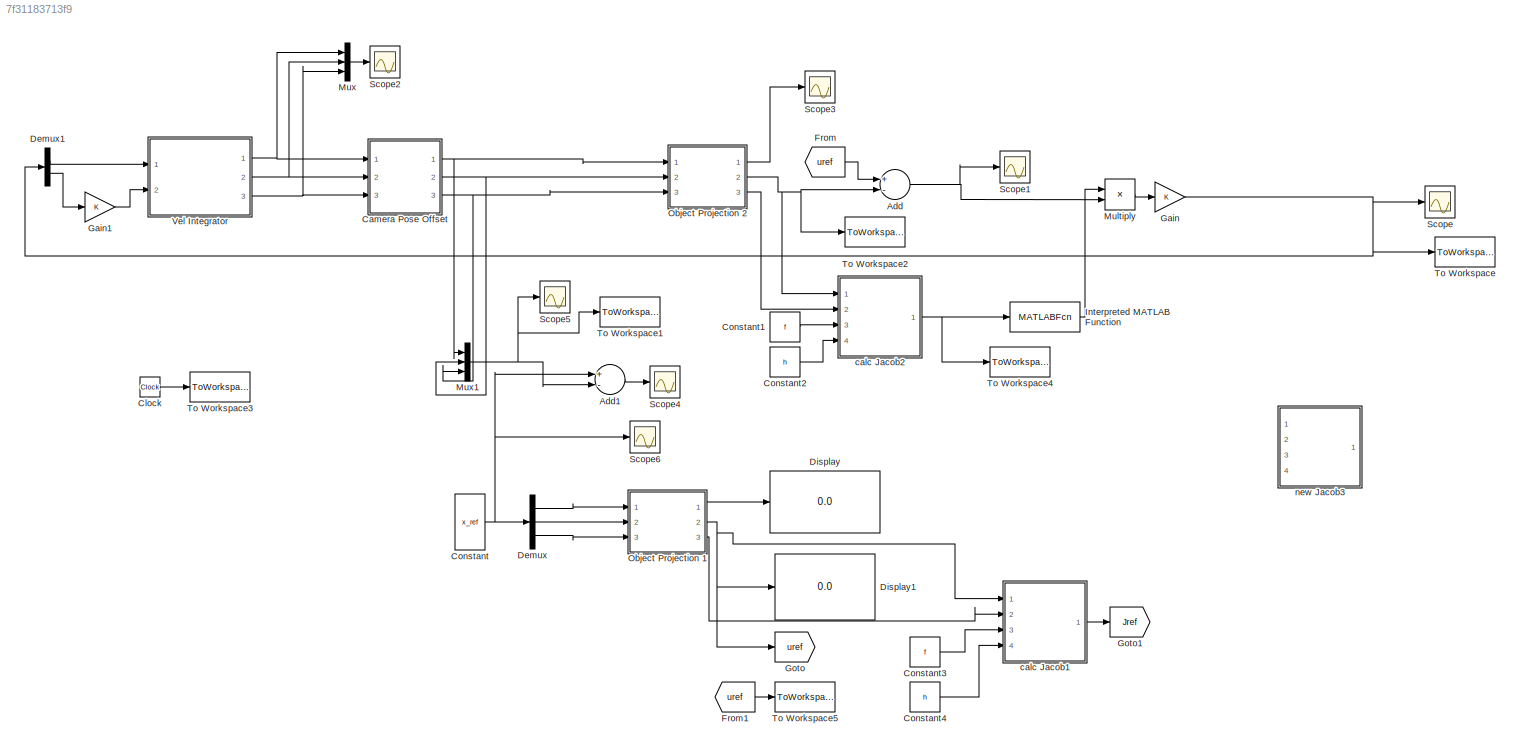
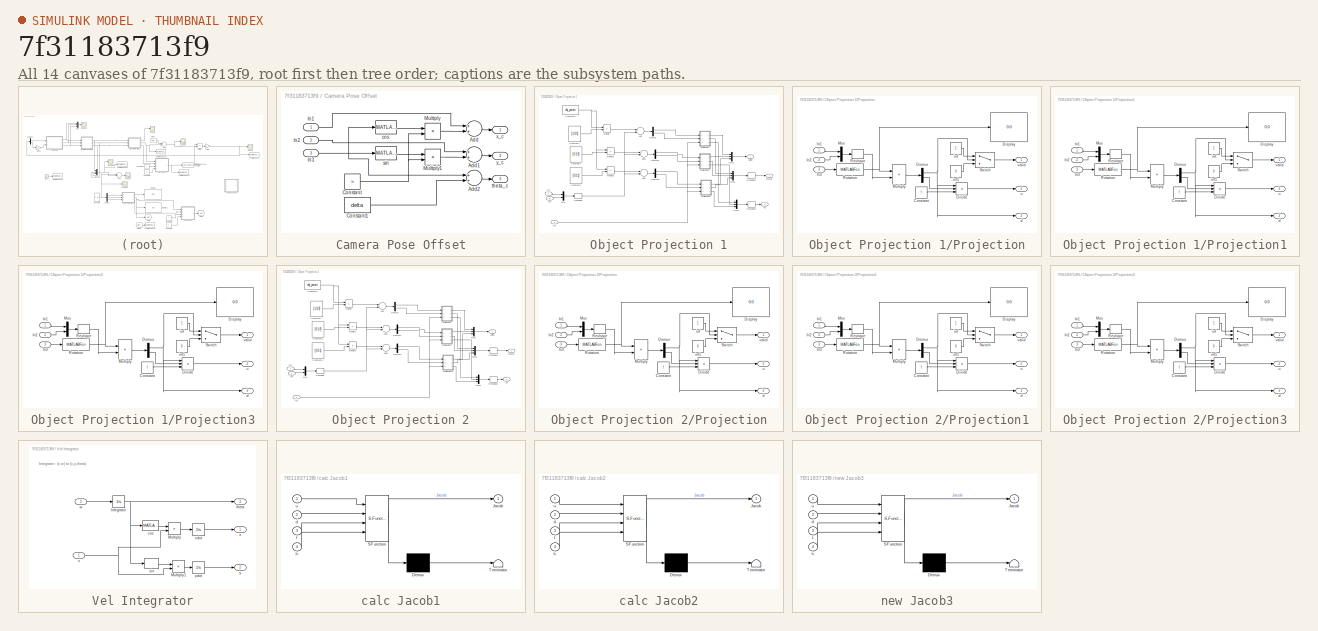
[diagram: thumbnail index - all 14 canvases of the model, root first then tree order]
MODEL slx_7f31183713f9
KIND model
CONFIG AbsTol = auto
CONFIG EnableMultiTasking = off
CONFIG FixedStep = ST
CONFIG MaxStep = auto
CONFIG MinStep = auto
CONFIG RelTol = 1e-3
CONFIG SampleTimeConstraint = Unconstrained
CONFIG Solver = FixedStepAuto
CONFIG SolverName = FixedStepAuto
CONFIG StartTime = 0.0
CONFIG StopTime = 5
BLOCK [Sum] Add
  InputSameDT = off
  Inputs = +-
  OutDataTypeStr = Inherit: Inherit via internal rule
  Ports = [2, 1]
  SaturateOnIntegerOverflow = off
BLOCK [Sum] Add1
  InputSameDT = off
  Inputs = +-
  OutDataTypeStr = Inherit: Inherit via internal rule
  Ports = [2, 1]
  SaturateOnIntegerOverflow = off
BLOCK [SubSystem] Camera Pose Offset
  Ports = [3, 3]
  RequestExecContextInheritance = off
BLOCK [Sum] Camera Pose Offset/Add
  InputSameDT = off
  OutDataTypeStr = Inherit: Inherit via internal rule
  Ports = [2, 1]
  SaturateOnIntegerOverflow = off
BLOCK [Sum] Camera Pose Offset/Add1
  InputSameDT = off
  OutDataTypeStr = Inherit: Inherit via internal rule
  Ports = [2, 1]
  SaturateOnIntegerOverflow = off
BLOCK [Sum] Camera Pose Offset/Add2
  InputSameDT = off
  OutDataTypeStr = Inherit: Inherit via internal rule
  Ports = [2, 1]
  SaturateOnIntegerOverflow = off
BLOCK [Constant] Camera Pose Offset/Constant
  Value = h
BLOCK [Constant] Camera Pose Offset/Constant1
  Value = delta
BLOCK [Inport] Camera Pose Offset/In1
  IconDisplay = Port number
BLOCK [Inport] Camera Pose Offset/In2
  IconDisplay = Port number
  Port = 2
BLOCK [Inport] Camera Pose Offset/In3
  IconDisplay = Port number
  Port = 3
BLOCK [Product] Camera Pose Offset/Multiply
  InputSameDT = off
  OutDataTypeStr = Inherit: Inherit via internal rule
  Ports = [2, 1]
  RndMeth = Floor
  SaturateOnIntegerOverflow = off
BLOCK [Product] Camera Pose Offset/Multiply1
  InputSameDT = off
  OutDataTypeStr = Inherit: Inherit via internal rule
  Ports = [2, 1]
  RndMeth = Floor
  SaturateOnIntegerOverflow = off
BLOCK [MATLABFcn] Camera Pose Offset/cos
  MATLABFcn = cos(u)
  Ports = [1, 1]
BLOCK [MATLABFcn] Camera Pose Offset/sin
  MATLABFcn = sin(u)
  Ports = [1, 1]
BLOCK [Outport] Camera Pose Offset/theta_c
  IconDisplay = Port number
  Port = 3
BLOCK [Outport] Camera Pose Offset/x_c
  IconDisplay = Port number
BLOCK [Outport] Camera Pose Offset/y_c
  IconDisplay = Port number
  Port = 2
BLOCK [Clock] Clock
BLOCK [Constant] Constant
  Value = x_ref
  VectorParams1D = off
BLOCK [Constant] Constant1
  Value = f
BLOCK [Constant] Constant2
  Value = h
BLOCK [Constant] Constant3
  Value = f
BLOCK [Constant] Constant4
  Value = h
BLOCK [Demux] Demux
  DisplayOption = bar
  Outputs = 3
  Ports = [1, 3]
BLOCK [Demux] Demux1
  DisplayOption = bar
  Outputs = 2
  Ports = [1, 2]
BLOCK [Display] Display
  Decimation = 1
  Ports = [1]
BLOCK [Display] Display1
  Decimation = 1
  Ports = [1]
BLOCK [From] From
  GotoTag = uref
BLOCK [From] From1
  GotoTag = uref
BLOCK [Gain] Gain
  OutDataTypeStr = Inherit: Inherit via internal rule
  ParamDataTypeStr = Inherit: Inherit via internal rule
  SaturateOnIntegerOverflow = off
BLOCK [Gain] Gain1
  OutDataTypeStr = Inherit: Inherit via internal rule
  ParamDataTypeStr = Inherit: Inherit via internal rule
  SaturateOnIntegerOverflow = off
BLOCK [Goto] Goto
  GotoTag = uref
BLOCK [Goto] Goto1
  GotoTag = Jref
BLOCK [MATLABFcn] Interpreted MATLAB Function
  MATLABFcn = pinv(u)
  Output1D = off
  Ports = [1, 1]
BLOCK [Product] Multiply
  InputSameDT = off
  Multiplication = Matrix(*)
  OutDataTypeStr = Inherit: Inherit via internal rule
  Ports = [2, 1]
  RndMeth = Floor
  SaturateOnIntegerOverflow = off
BLOCK [Mux] Mux
  DisplayOption = bar
  Inputs = 3
  Ports = [3, 1]
BLOCK [Mux] Mux1
  DisplayOption = bar
  Inputs = 3
  Ports = [3, 1]
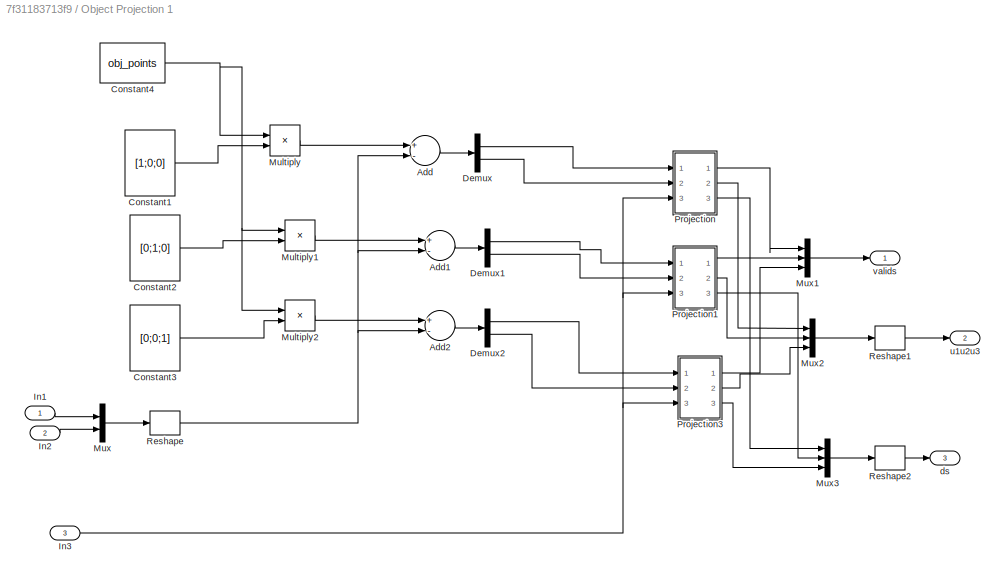
BLOCK [SubSystem] Object Projection 1
  Ports = [3, 3]
  RequestExecContextInheritance = off
BLOCK [Sum] Object Projection 1/Add
  InputSameDT = off
  Inputs = +-
  OutDataTypeStr = Inherit: Inherit via internal rule
  Ports = [2, 1]
  SaturateOnIntegerOverflow = off
BLOCK [Sum] Object Projection 1/Add1
  InputSameDT = off
  Inputs = +-
  OutDataTypeStr = Inherit: Inherit via internal rule
  Ports = [2, 1]
  SaturateOnIntegerOverflow = off
BLOCK [Sum] Object Projection 1/Add2
  InputSameDT = off
  Inputs = +-
  OutDataTypeStr = Inherit: Inherit via internal rule
  Ports = [2, 1]
  SaturateOnIntegerOverflow = off
BLOCK [Constant] Object Projection 1/Constant1
  Value = [1;0;0]
  VectorParams1D = off
BLOCK [Constant] Object Projection 1/Constant2
  Value = [0;1;0]
  VectorParams1D = off
BLOCK [Constant] Object Projection 1/Constant3
  Value = [0;0;1]
  VectorParams1D = off
BLOCK [Constant] Object Projection 1/Constant4
  Value = obj_points
BLOCK [Demux] Object Projection 1/Demux
  DisplayOption = bar
  Outputs = 2
  Ports = [1, 2]
BLOCK [Demux] Object Projection 1/Demux1
  DisplayOption = bar
  Outputs = 2
  Ports = [1, 2]
BLOCK [Demux] Object Projection 1/Demux2
  DisplayOption = bar
  Outputs = 2
  Ports = [1, 2]
BLOCK [Inport] Object Projection 1/In1
  IconDisplay = Port number
BLOCK [Inport] Object Projection 1/In2
  IconDisplay = Port number
  Port = 2
BLOCK [Inport] Object Projection 1/In3
  IconDisplay = Port number
  Port = 3
BLOCK [Product] Object Projection 1/Multiply
  InputSameDT = off
  Multiplication = Matrix(*)
  OutDataTypeStr = Inherit: Inherit via internal rule
  Ports = [2, 1]
  RndMeth = Floor
  SaturateOnIntegerOverflow = off
BLOCK [Product] Object Projection 1/Multiply1
  InputSameDT = off
  Multiplication = Matrix(*)
  OutDataTypeStr = Inherit: Inherit via internal rule
  Ports = [2, 1]
  RndMeth = Floor
  SaturateOnIntegerOverflow = off
BLOCK [Product] Object Projection 1/Multiply2
  InputSameDT = off
  Multiplication = Matrix(*)
  OutDataTypeStr = Inherit: Inherit via internal rule
  Ports = [2, 1]
  RndMeth = Floor
  SaturateOnIntegerOverflow = off
BLOCK [Mux] Object Projection 1/Mux
  DisplayOption = bar
  Inputs = 2
  Ports = [2, 1]
BLOCK [Mux] Object Projection 1/Mux1
  DisplayOption = bar
  Inputs = 3
  Ports = [3, 1]
BLOCK [Mux] Object Projection 1/Mux2
  DisplayOption = bar
  Inputs = 3
  Ports = [3, 1]
BLOCK [Mux] Object Projection 1/Mux3
  DisplayOption = bar
  Inputs = 3
  Ports = [3, 1]
BLOCK [SubSystem] Object Projection 1/Projection
  Ports = [3, 3]
  RequestExecContextInheritance = off
BLOCK [Constant] Object Projection 1/Projection/Constant
  Value = f
BLOCK [Demux] Object Projection 1/Projection/Demux
  DisplayOption = bar
  Outputs = 2
  Ports = [1, 2]
BLOCK [Display] Object Projection 1/Projection/Display
  Decimation = 1
  Ports = [1]
BLOCK [Product] Object Projection 1/Projection/Divide
  InputSameDT = off
  Inputs = /**
  OutDataTypeStr = Inherit: Inherit via internal rule
  Ports = [3, 1]
  RndMeth = Floor
  SaturateOnIntegerOverflow = off
BLOCK [Inport] Object Projection 1/Projection/In1
  IconDisplay = Port number
BLOCK [Inport] Object Projection 1/Projection/In2
  IconDisplay = Port number
  Port = 2
BLOCK [Inport] Object Projection 1/Projection/In3
  IconDisplay = Port number
  Port = 3
BLOCK [Product] Object Projection 1/Projection/Multiply
  InputSameDT = off
  Multiplication = Matrix(*)
  OutDataTypeStr = Inherit: Inherit via internal rule
  Ports = [2, 1]
  RndMeth = Floor
  SaturateOnIntegerOverflow = off
BLOCK [Mux] Object Projection 1/Projection/Mux
  DisplayOption = bar
  Inputs = 2
  Ports = [2, 1]
BLOCK [Reshape] Object Projection 1/Projection/Reshape
  OutputDimensionality = Column vector (2-D)
  Ports = [1, 1]
BLOCK [MATLABFcn] Object Projection 1/Projection/Rotation
  MATLABFcn = [cos(u) sin(u);sin(u) -cos(u)]
  Output1D = off
  OutputDimensions = [2 2]
  Ports = [1, 1]
BLOCK [Switch] Object Projection 1/Projection/Switch
  Criteria = u2 > Threshold
  InputSameDT = off
  SaturateOnIntegerOverflow = off
BLOCK [Outport] Object Projection 1/Projection/d
  IconDisplay = Port number
  Port = 3
BLOCK [Constant] Object Projection 1/Projection/inf
BLOCK [Constant] Object Projection 1/Projection/inf1
  Value = 0
BLOCK [Outport] Object Projection 1/Projection/u
  IconDisplay = Port number
  Port = 2
BLOCK [Outport] Object Projection 1/Projection/valid
  IconDisplay = Port number
BLOCK [SubSystem] Object Projection 1/Projection1
  Ports = [3, 3]
  RequestExecContextInheritance = off
BLOCK [Constant] Object Projection 1/Projection1/Constant
  Value = f
BLOCK [Demux] Object Projection 1/Projection1/Demux
  DisplayOption = bar
  Outputs = 2
  Ports = [1, 2]
BLOCK [Display] Object Projection 1/Projection1/Display
  Decimation = 1
  Ports = [1]
BLOCK [Product] Object Projection 1/Projection1/Divide
  InputSameDT = off
  Inputs = /**
  OutDataTypeStr = Inherit: Inherit via internal rule
  Ports = [3, 1]
  RndMeth = Floor
  SaturateOnIntegerOverflow = off
BLOCK [Inport] Object Projection 1/Projection1/In1
  IconDisplay = Port number
BLOCK [Inport] Object Projection 1/Projection1/In2
  IconDisplay = Port number
  Port = 2
BLOCK [Inport] Object Projection 1/Projection1/In3
  IconDisplay = Port number
  Port = 3
BLOCK [Product] Object Projection 1/Projection1/Multiply
  InputSameDT = off
  Multiplication = Matrix(*)
  OutDataTypeStr = Inherit: Inherit via internal rule
  Ports = [2, 1]
  RndMeth = Floor
  SaturateOnIntegerOverflow = off
BLOCK [Mux] Object Projection 1/Projection1/Mux
  DisplayOption = bar
  Inputs = 2
  Ports = [2, 1]
BLOCK [Reshape] Object Projection 1/Projection1/Reshape
  OutputDimensionality = Column vector (2-D)
  Ports = [1, 1]
BLOCK [MATLABFcn] Object Projection 1/Projection1/Rotation
  MATLABFcn = [cos(u) sin(u);sin(u) -cos(u)]
  Output1D = off
  OutputDimensions = [2 2]
  Ports = [1, 1]
BLOCK [Switch] Object Projection 1/Projection1/Switch
  Criteria = u2 > Threshold
  InputSameDT = off
  SaturateOnIntegerOverflow = off
BLOCK [Outport] Object Projection 1/Projection1/d
  IconDisplay = Port number
  Port = 3
BLOCK [Constant] Object Projection 1/Projection1/inf
BLOCK [Constant] Object Projection 1/Projection1/inf1
  Value = 0
BLOCK [Outport] Object Projection 1/Projection1/u
  IconDisplay = Port number
  Port = 2
BLOCK [Outport] Object Projection 1/Projection1/valid
  IconDisplay = Port number
BLOCK [SubSystem] Object Projection 1/Projection3
  Ports = [3, 3]
  RequestExecContextInheritance = off
BLOCK [Constant] Object Projection 1/Projection3/Constant
  Value = f
BLOCK [Demux] Object Projection 1/Projection3/Demux
  DisplayOption = bar
  Outputs = 2
  Ports = [1, 2]
BLOCK [Display] Object Projection 1/Projection3/Display
  Decimation = 1
  Ports = [1]
BLOCK [Product] Object Projection 1/Projection3/Divide
  InputSameDT = off
  Inputs = /**
  OutDataTypeStr = Inherit: Inherit via internal rule
  Ports = [3, 1]
  RndMeth = Floor
  SaturateOnIntegerOverflow = off
BLOCK [Inport] Object Projection 1/Projection3/In1
  IconDisplay = Port number
BLOCK [Inport] Object Projection 1/Projection3/In2
  IconDisplay = Port number
  Port = 2
BLOCK [Inport] Object Projection 1/Projection3/In3
  IconDisplay = Port number
  Port = 3
BLOCK [Product] Object Projection 1/Projection3/Multiply
  InputSameDT = off
  Multiplication = Matrix(*)
  OutDataTypeStr = Inherit: Inherit via internal rule
  Ports = [2, 1]
  RndMeth = Floor
  SaturateOnIntegerOverflow = off
BLOCK [Mux] Object Projection 1/Projection3/Mux
  DisplayOption = bar
  Inputs = 2
  Ports = [2, 1]
BLOCK [Reshape] Object Projection 1/Projection3/Reshape
  OutputDimensionality = Column vector (2-D)
  Ports = [1, 1]
BLOCK [MATLABFcn] Object Projection 1/Projection3/Rotation
  MATLABFcn = [cos(u) sin(u);sin(u) -cos(u)]
  Output1D = off
  OutputDimensions = [2 2]
  Ports = [1, 1]
BLOCK [Switch] Object Projection 1/Projection3/Switch
  Criteria = u2 > Threshold
  InputSameDT = off
  SaturateOnIntegerOverflow = off
BLOCK [Outport] Object Projection 1/Projection3/d
  IconDisplay = Port number
  Port = 3
BLOCK [Constant] Object Projection 1/Projection3/inf
BLOCK [Constant] Object Projection 1/Projection3/inf1
  Value = 0
BLOCK [Outport] Object Projection 1/Projection3/u
  IconDisplay = Port number
  Port = 2
BLOCK [Outport] Object Projection 1/Projection3/valid
  IconDisplay = Port number
BLOCK [Reshape] Object Projection 1/Reshape
  OutputDimensionality = Column vector (2-D)
  Ports = [1, 1]
BLOCK [Reshape] Object Projection 1/Reshape1
  OutputDimensionality = Column vector (2-D)
  Ports = [1, 1]
BLOCK [Reshape] Object Projection 1/Reshape2
  OutputDimensionality = Column vector (2-D)
  Ports = [1, 1]
BLOCK [Outport] Object Projection 1/ds
  IconDisplay = Port number
  Port = 3
BLOCK [Outport] Object Projection 1/u1u2u3
  IconDisplay = Port number
  Port = 2
BLOCK [Outport] Object Projection 1/valids
  IconDisplay = Port number
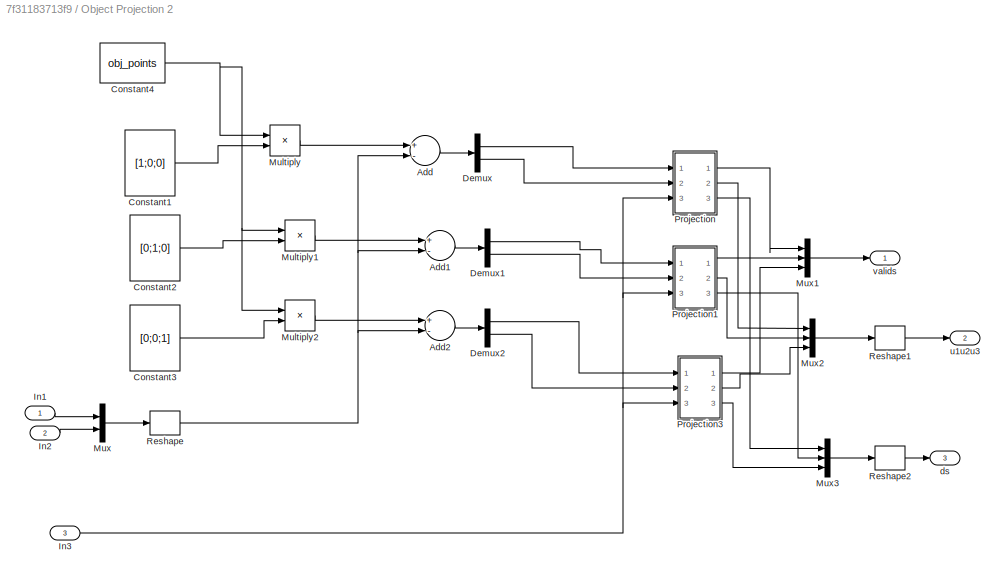
BLOCK [SubSystem] Object Projection 2
  Ports = [3, 3]
  RequestExecContextInheritance = off
BLOCK [Sum] Object Projection 2/Add
  InputSameDT = off
  Inputs = +-
  OutDataTypeStr = Inherit: Inherit via internal rule
  Ports = [2, 1]
  SaturateOnIntegerOverflow = off
BLOCK [Sum] Object Projection 2/Add1
  InputSameDT = off
  Inputs = +-
  OutDataTypeStr = Inherit: Inherit via internal rule
  Ports = [2, 1]
  SaturateOnIntegerOverflow = off
BLOCK [Sum] Object Projection 2/Add2
  InputSameDT = off
  Inputs = +-
  OutDataTypeStr = Inherit: Inherit via internal rule
  Ports = [2, 1]
  SaturateOnIntegerOverflow = off
BLOCK [Constant] Object Projection 2/Constant1
  Value = [1;0;0]
  VectorParams1D = off
BLOCK [Constant] Object Projection 2/Constant2
  Value = [0;1;0]
  VectorParams1D = off
BLOCK [Constant] Object Projection 2/Constant3
  Value = [0;0;1]
  VectorParams1D = off
BLOCK [Constant] Object Projection 2/Constant4
  Value = obj_points
BLOCK [Demux] Object Projection 2/Demux
  DisplayOption = bar
  Outputs = 2
  Ports = [1, 2]
BLOCK [Demux] Object Projection 2/Demux1
  DisplayOption = bar
  Outputs = 2
  Ports = [1, 2]
BLOCK [Demux] Object Projection 2/Demux2
  DisplayOption = bar
  Outputs = 2
  Ports = [1, 2]
BLOCK [Inport] Object Projection 2/In1
  IconDisplay = Port number
BLOCK [Inport] Object Projection 2/In2
  IconDisplay = Port number
  Port = 2
BLOCK [Inport] Object Projection 2/In3
  IconDisplay = Port number
  Port = 3
BLOCK [Product] Object Projection 2/Multiply
  InputSameDT = off
  Multiplication = Matrix(*)
  OutDataTypeStr = Inherit: Inherit via internal rule
  Ports = [2, 1]
  RndMeth = Floor
  SaturateOnIntegerOverflow = off
BLOCK [Product] Object Projection 2/Multiply1
  InputSameDT = off
  Multiplication = Matrix(*)
  OutDataTypeStr = Inherit: Inherit via internal rule
  Ports = [2, 1]
  RndMeth = Floor
  SaturateOnIntegerOverflow = off
BLOCK [Product] Object Projection 2/Multiply2
  InputSameDT = off
  Multiplication = Matrix(*)
  OutDataTypeStr = Inherit: Inherit via internal rule
  Ports = [2, 1]
  RndMeth = Floor
  SaturateOnIntegerOverflow = off
BLOCK [Mux] Object Projection 2/Mux
  DisplayOption = bar
  Inputs = 2
  Ports = [2, 1]
BLOCK [Mux] Object Projection 2/Mux1
  DisplayOption = bar
  Inputs = 3
  Ports = [3, 1]
BLOCK [Mux] Object Projection 2/Mux2
  DisplayOption = bar
  Inputs = 3
  Ports = [3, 1]
BLOCK [Mux] Object Projection 2/Mux3
  DisplayOption = bar
  Inputs = 3
  Ports = [3, 1]
BLOCK [SubSystem] Object Projection 2/Projection
  Ports = [3, 3]
  RequestExecContextInheritance = off
BLOCK [Constant] Object Projection 2/Projection/Constant
  Value = f
BLOCK [Demux] Object Projection 2/Projection/Demux
  DisplayOption = bar
  Outputs = 2
  Ports = [1, 2]
BLOCK [Display] Object Projection 2/Projection/Display
  Decimation = 1
  Ports = [1]
BLOCK [Product] Object Projection 2/Projection/Divide
  InputSameDT = off
  Inputs = /**
  OutDataTypeStr = Inherit: Inherit via internal rule
  Ports = [3, 1]
  RndMeth = Floor
  SaturateOnIntegerOverflow = off
BLOCK [Inport] Object Projection 2/Projection/In1
  IconDisplay = Port number
BLOCK [Inport] Object Projection 2/Projection/In2
  IconDisplay = Port number
  Port = 2
BLOCK [Inport] Object Projection 2/Projection/In3
  IconDisplay = Port number
  Port = 3
BLOCK [Product] Object Projection 2/Projection/Multiply
  InputSameDT = off
  Multiplication = Matrix(*)
  OutDataTypeStr = Inherit: Inherit via internal rule
  Ports = [2, 1]
  RndMeth = Floor
  SaturateOnIntegerOverflow = off
BLOCK [Mux] Object Projection 2/Projection/Mux
  DisplayOption = bar
  Inputs = 2
  Ports = [2, 1]
BLOCK [Reshape] Object Projection 2/Projection/Reshape
  OutputDimensionality = Column vector (2-D)
  Ports = [1, 1]
BLOCK [MATLABFcn] Object Projection 2/Projection/Rotation
  MATLABFcn = [cos(u) sin(u);sin(u) -cos(u)]
  Output1D = off
  OutputDimensions = [2 2]
  Ports = [1, 1]
BLOCK [Switch] Object Projection 2/Projection/Switch
  Criteria = u2 > Threshold
  InputSameDT = off
  SaturateOnIntegerOverflow = off
BLOCK [Outport] Object Projection 2/Projection/d
  IconDisplay = Port number
  Port = 3
BLOCK [Constant] Object Projection 2/Projection/inf
BLOCK [Constant] Object Projection 2/Projection/inf1
  Value = 0
BLOCK [Outport] Object Projection 2/Projection/u
  IconDisplay = Port number
  Port = 2
BLOCK [Outport] Object Projection 2/Projection/valid
  IconDisplay = Port number
BLOCK [SubSystem] Object Projection 2/Projection1
  Ports = [3, 3]
  RequestExecContextInheritance = off
BLOCK [Constant] Object Projection 2/Projection1/Constant
  Value = f
BLOCK [Demux] Object Projection 2/Projection1/Demux
  DisplayOption = bar
  Outputs = 2
  Ports = [1, 2]
BLOCK [Display] Object Projection 2/Projection1/Display
  Decimation = 1
  Ports = [1]
BLOCK [Product] Object Projection 2/Projection1/Divide
  InputSameDT = off
  Inputs = /**
  OutDataTypeStr = Inherit: Inherit via internal rule
  Ports = [3, 1]
  RndMeth = Floor
  SaturateOnIntegerOverflow = off
BLOCK [Inport] Object Projection 2/Projection1/In1
  IconDisplay = Port number
BLOCK [Inport] Object Projection 2/Projection1/In2
  IconDisplay = Port number
  Port = 2
BLOCK [Inport] Object Projection 2/Projection1/In3
  IconDisplay = Port number
  Port = 3
BLOCK [Product] Object Projection 2/Projection1/Multiply
  InputSameDT = off
  Multiplication = Matrix(*)
  OutDataTypeStr = Inherit: Inherit via internal rule
  Ports = [2, 1]
  RndMeth = Floor
  SaturateOnIntegerOverflow = off
BLOCK [Mux] Object Projection 2/Projection1/Mux
  DisplayOption = bar
  Inputs = 2
  Ports = [2, 1]
BLOCK [Reshape] Object Projection 2/Projection1/Reshape
  OutputDimensionality = Column vector (2-D)
  Ports = [1, 1]
BLOCK [MATLABFcn] Object Projection 2/Projection1/Rotation
  MATLABFcn = [cos(u) sin(u);sin(u) -cos(u)]
  Output1D = off
  OutputDimensions = [2 2]
  Ports = [1, 1]
BLOCK [Switch] Object Projection 2/Projection1/Switch
  Criteria = u2 > Threshold
  InputSameDT = off
  SaturateOnIntegerOverflow = off
BLOCK [Outport] Object Projection 2/Projection1/d
  IconDisplay = Port number
  Port = 3
BLOCK [Constant] Object Projection 2/Projection1/inf
BLOCK [Constant] Object Projection 2/Projection1/inf1
  Value = 0
BLOCK [Outport] Object Projection 2/Projection1/u
  IconDisplay = Port number
  Port = 2
BLOCK [Outport] Object Projection 2/Projection1/valid
  IconDisplay = Port number
BLOCK [SubSystem] Object Projection 2/Projection3
  Ports = [3, 3]
  RequestExecContextInheritance = off
BLOCK [Constant] Object Projection 2/Projection3/Constant
  Value = f
BLOCK [Demux] Object Projection 2/Projection3/Demux
  DisplayOption = bar
  Outputs = 2
  Ports = [1, 2]
BLOCK [Display] Object Projection 2/Projection3/Display
  Decimation = 1
  Ports = [1]
BLOCK [Product] Object Projection 2/Projection3/Divide
  InputSameDT = off
  Inputs = /**
  OutDataTypeStr = Inherit: Inherit via internal rule
  Ports = [3, 1]
  RndMeth = Floor
  SaturateOnIntegerOverflow = off
BLOCK [Inport] Object Projection 2/Projection3/In1
  IconDisplay = Port number
BLOCK [Inport] Object Projection 2/Projection3/In2
  IconDisplay = Port number
  Port = 2
BLOCK [Inport] Object Projection 2/Projection3/In3
  IconDisplay = Port number
  Port = 3
BLOCK [Product] Object Projection 2/Projection3/Multiply
  InputSameDT = off
  Multiplication = Matrix(*)
  OutDataTypeStr = Inherit: Inherit via internal rule
  Ports = [2, 1]
  RndMeth = Floor
  SaturateOnIntegerOverflow = off
BLOCK [Mux] Object Projection 2/Projection3/Mux
  DisplayOption = bar
  Inputs = 2
  Ports = [2, 1]
BLOCK [Reshape] Object Projection 2/Projection3/Reshape
  OutputDimensionality = Column vector (2-D)
  Ports = [1, 1]
BLOCK [MATLABFcn] Object Projection 2/Projection3/Rotation
  MATLABFcn = [cos(u) sin(u);sin(u) -cos(u)]
  Output1D = off
  OutputDimensions = [2 2]
  Ports = [1, 1]
BLOCK [Switch] Object Projection 2/Projection3/Switch
  Criteria = u2 > Threshold
  InputSameDT = off
  SaturateOnIntegerOverflow = off
BLOCK [Outport] Object Projection 2/Projection3/d
  IconDisplay = Port number
  Port = 3
BLOCK [Constant] Object Projection 2/Projection3/inf
BLOCK [Constant] Object Projection 2/Projection3/inf1
  Value = 0
BLOCK [Outport] Object Projection 2/Projection3/u
  IconDisplay = Port number
  Port = 2
BLOCK [Outport] Object Projection 2/Projection3/valid
  IconDisplay = Port number
BLOCK [Reshape] Object Projection 2/Reshape
  OutputDimensionality = Column vector (2-D)
  Ports = [1, 1]
BLOCK [Reshape] Object Projection 2/Reshape1
  OutputDimensionality = Column vector (2-D)
  Ports = [1, 1]
BLOCK [Reshape] Object Projection 2/Reshape2
  OutputDimensionality = Column vector (2-D)
  Ports = [1, 1]
BLOCK [Outport] Object Projection 2/ds
  IconDisplay = Port number
  Port = 3
BLOCK [Outport] Object Projection 2/u1u2u3
  IconDisplay = Port number
  Port = 2
BLOCK [Outport] Object Projection 2/valids
  IconDisplay = Port number
BLOCK [Scope] Scope
  Floating = off
  NumInputPorts = 1
  Ports = [1]
  ScopeSpecificationString = Simulink.scopes.TimeScopeBlockCfg('CurrentConfiguration', extmgr.ConfigurationSet(extmgr.Configuration('Core','General UI',true),extmgr.Configuration('Core','Source UI',true),extmgr.Configuration('Sources','WiredSimulink',true),extmgr.Configuration('Visuals','Time Domain',true,'SerializedDisplays',{struct('MinYLimReal','-3.16906','MaxYLimReal','0.49782','YLabelReal','','MinYLimMag','0.00000','MaxY...<+1335ch>
BLOCK [Scope] Scope1
  Floating = off
  NumInputPorts = 1
  Ports = [1]
  ScopeSpecificationString = Simulink.scopes.TimeScopeBlockCfg('CurrentConfiguration', extmgr.ConfigurationSet(extmgr.Configuration('Core','General UI',true),extmgr.Configuration('Core','Source UI',true),extmgr.Configuration('Sources','WiredSimulink',true,'DataLoggingVariableName','ScopeData1'),extmgr.Configuration('Visuals','Time Domain',true,'SerializedDisplays',{struct('MinYLimReal','-259.76112','MaxYLimReal','36.05179','Y...<+1424ch>
BLOCK [Scope] Scope2
  Floating = off
  NumInputPorts = 1
  Ports = [1]
  ScopeSpecificationString = Simulink.scopes.TimeScopeBlockCfg('CurrentConfiguration', extmgr.ConfigurationSet(extmgr.Configuration('Core','General UI',true),extmgr.Configuration('Core','Source UI',true),extmgr.Configuration('Sources','WiredSimulink',true,'DataLoggingVariableName','ScopeData2'),extmgr.Configuration('Visuals','Time Domain',true,'SerializedDisplays',{struct('MinYLimReal','-0.21027','MaxYLimReal','0.24559','YLab...<+1413ch>
BLOCK [Scope] Scope3
  Floating = off
  NumInputPorts = 1
  Ports = [1]
  ScopeSpecificationString = Simulink.scopes.TimeScopeBlockCfg('CurrentConfiguration', extmgr.ConfigurationSet(extmgr.Configuration('Core','General UI',true),extmgr.Configuration('Core','Source UI',true),extmgr.Configuration('Sources','WiredSimulink',true,'DataLoggingVariableName','ScopeData3'),extmgr.Configuration('Visuals','Time Domain',true,'SerializedDisplays',{struct('MinYLimReal','0.9','MaxYLimReal','1.1','YLabelReal','...<+1400ch>
BLOCK [Scope] Scope4
  Floating = off
  NumInputPorts = 1
  Ports = [1]
  ScopeSpecificationString = Simulink.scopes.TimeScopeBlockCfg('CurrentConfiguration', extmgr.ConfigurationSet(extmgr.Configuration('Core','General UI',true),extmgr.Configuration('Core','Source UI',true),extmgr.Configuration('Sources','WiredSimulink',true,'DataLoggingVariableName','ScopeData4'),extmgr.Configuration('Visuals','Time Domain',true,'SerializedDisplays',{struct('MinYLimReal','-0.25497','MaxYLimReal','0.22','YLabelR...<+1377ch>
BLOCK [Scope] Scope5
  Floating = off
  NumInputPorts = 1
  Ports = [1]
  ScopeSpecificationString = Simulink.scopes.TimeScopeBlockCfg('CurrentConfiguration', extmgr.ConfigurationSet(extmgr.Configuration('Core','General UI',true),extmgr.Configuration('Core','Source UI',true),extmgr.Configuration('Sources','WiredSimulink',true,'DataLoggingVariableName','ScopeData5'),extmgr.Configuration('Visuals','Time Domain',true,'SerializedDisplays',{struct('MinYLimReal','-0.2112','MaxYLimReal','0.25399','YLabe...<+1423ch>
BLOCK [Scope] Scope6
  Floating = off
  NumInputPorts = 1
  Ports = [1]
  ScopeSpecificationString = Simulink.scopes.TimeScopeBlockCfg('CurrentConfiguration', extmgr.ConfigurationSet(extmgr.Configuration('Core','General UI',true),extmgr.Configuration('Core','Source UI',true),extmgr.Configuration('Sources','WiredSimulink',true,'DataLoggingVariableName','ScopeData6'),extmgr.Configuration('Visuals','Time Domain',true,'SerializedDisplays',{struct('MinYLimReal','-1.00000','MaxYLimReal','1.00000','YLab...<+1395ch>
BLOCK [ToWorkspace] To Workspace
  FixptAsFi = on
  MaxDataPoints = inf
  Ports = [1]
  SampleTime = -1
  Save2DSignal = 3-D array (concatenate along third dimension)
  SaveFormat = Timeseries
  VariableName = vw
BLOCK [ToWorkspace] To Workspace1
  FixptAsFi = on
  MaxDataPoints = inf
  Ports = [1]
  SampleTime = -1
  Save2DSignal = 3-D array (concatenate along third dimension)
  SaveFormat = Timeseries
  VariableName = xc
BLOCK [ToWorkspace] To Workspace2
  FixptAsFi = on
  MaxDataPoints = inf
  Ports = [1]
  SampleTime = -1
  Save2DSignal = 3-D array (concatenate along third dimension)
  SaveFormat = Timeseries
  VariableName = us
BLOCK [ToWorkspace] To Workspace3
  FixptAsFi = on
  MaxDataPoints = inf
  Ports = [1]
  SampleTime = -1
  Save2DSignal = 3-D array (concatenate along third dimension)
  SaveFormat = Timeseries
  VariableName = time
BLOCK [ToWorkspace] To Workspace4
  FixptAsFi = on
  MaxDataPoints = inf
  Ports = [1]
  SampleTime = -1
  Save2DSignal = 3-D array (concatenate along third dimension)
  SaveFormat = Timeseries
  VariableName = Jacob
BLOCK [ToWorkspace] To Workspace5
  FixptAsFi = on
  MaxDataPoints = inf
  Ports = [1]
  SampleTime = -1
  Save2DSignal = 3-D array (concatenate along third dimension)
  SaveFormat = Timeseries
  VariableName = uref
BLOCK [SubSystem] Vel Integrator
  Ports = [2, 3]
  RequestExecContextInheritance = off
BLOCK [Integrator] Vel Integrator/Integrator
  InitialCondition = theta_0
  Ports = [1, 1]
BLOCK [Product] Vel Integrator/Multiply
  InputSameDT = off
  OutDataTypeStr = Inherit: Inherit via internal rule
  Ports = [2, 1]
  RndMeth = Floor
  SaturateOnIntegerOverflow = off
BLOCK [Product] Vel Integrator/Multiply1
  InputSameDT = off
  OutDataTypeStr = Inherit: Inherit via internal rule
  Ports = [2, 1]
  RndMeth = Floor
  SaturateOnIntegerOverflow = off
BLOCK [MATLABFcn] Vel Integrator/cos
  MATLABFcn = cos(u)
  Ports = [1, 1]
BLOCK [MATLABFcn] Vel Integrator/sin
  MATLABFcn = sin(u)
  Ports = [1, 1]
BLOCK [Outport] Vel Integrator/theta
  IconDisplay = Port number
  Port = 3
BLOCK [Inport] Vel Integrator/v
  IconDisplay = Port number
BLOCK [Inport] Vel Integrator/w
  IconDisplay = Port number
  Port = 2
BLOCK [Outport] Vel Integrator/x
  IconDisplay = Port number
BLOCK [Integrator] Vel Integrator/xdot
  InitialCondition = x_0
  Ports = [1, 1]
BLOCK [Outport] Vel Integrator/y
  IconDisplay = Port number
  Port = 2
BLOCK [Integrator] Vel Integrator/ydot
  InitialCondition = y_0
  Ports = [1, 1]
BLOCK [SubSystem] calc Jacob1
  ErrorFcn = Stateflow.Translate.translate
  PermitHierarchicalResolution = ExplicitOnly
  Ports = [4, 1]
  RequestExecContextInheritance = off
  SFBlockType = MATLAB Function
  TreatAsAtomicUnit = on
BLOCK [Demux] calc Jacob1/ Demux 
  Outputs = 1
  Ports = [1, 1]
BLOCK [S-Function] calc Jacob1/ SFunction 
  EnableBusSupport = on
  FunctionName = sf_sfun
  PortCounts = [4 2]
  Ports = [4, 2]
  SFcnIsStateOwnerBlock = off
  SFunctionDeploymentMode = off
  Tag = Stateflow S-Function VS_test 1
BLOCK [Terminator] calc Jacob1/ Terminator 
BLOCK [Outport] calc Jacob1/Jacob
  IconDisplay = Port number
BLOCK [Inport] calc Jacob1/d
  IconDisplay = Port number
  Port = 2
BLOCK [Inport] calc Jacob1/f
  IconDisplay = Port number
  Port = 3
BLOCK [Inport] calc Jacob1/h
  IconDisplay = Port number
  Port = 4
BLOCK [Inport] calc Jacob1/u
  IconDisplay = Port number
BLOCK [SubSystem] calc Jacob2
  ErrorFcn = Stateflow.Translate.translate
  PermitHierarchicalResolution = ExplicitOnly
  Ports = [4, 1]
  RequestExecContextInheritance = off
  SFBlockType = MATLAB Function
  TreatAsAtomicUnit = on
BLOCK [Demux] calc Jacob2/ Demux 
  Outputs = 1
  Ports = [1, 1]
BLOCK [S-Function] calc Jacob2/ SFunction 
  EnableBusSupport = on
  FunctionName = sf_sfun
  PortCounts = [4 2]
  Ports = [4, 2]
  SFcnIsStateOwnerBlock = off
  SFunctionDeploymentMode = off
  Tag = Stateflow S-Function VS_test 3
BLOCK [Terminator] calc Jacob2/ Terminator 
BLOCK [Outport] calc Jacob2/Jacob
  IconDisplay = Port number
BLOCK [Inport] calc Jacob2/d
  IconDisplay = Port number
  Port = 2
BLOCK [Inport] calc Jacob2/f
  IconDisplay = Port number
  Port = 3
BLOCK [Inport] calc Jacob2/h
  IconDisplay = Port number
  Port = 4
BLOCK [Inport] calc Jacob2/u
  IconDisplay = Port number
BLOCK [SubSystem] new Jacob3
  ErrorFcn = Stateflow.Translate.translate
  PermitHierarchicalResolution = ExplicitOnly
  Ports = [4, 1]
  RequestExecContextInheritance = off
  SFBlockType = MATLAB Function
  TreatAsAtomicUnit = on
BLOCK [Demux] new Jacob3/ Demux 
  Outputs = 1
  Ports = [1, 1]
BLOCK [S-Function] new Jacob3/ SFunction 
  EnableBusSupport = on
  FunctionName = sf_sfun
  PortCounts = [4 2]
  Ports = [4, 2]
  SFcnIsStateOwnerBlock = off
  SFunctionDeploymentMode = off
  Tag = Stateflow S-Function VS_test 2
BLOCK [Terminator] new Jacob3/ Terminator 
BLOCK [Outport] new Jacob3/Jacob
  IconDisplay = Port number
BLOCK [Inport] new Jacob3/d
  IconDisplay = Port number
  Port = 2
BLOCK [Inport] new Jacob3/f
  IconDisplay = Port number
  Port = 3
BLOCK [Inport] new Jacob3/h
  IconDisplay = Port number
  Port = 4
BLOCK [Inport] new Jacob3/u
  IconDisplay = Port number
ANNOTATION Vel Integrator: Integrator : (v,w) to (x,y,theta)
LINE Add1:1 -> Scope4:1
NET Add:1 -> Multiply:2, Scope1:1
LINE Camera Pose Offset/Add1:1 -> Camera Pose Offset/y_c:1
LINE Camera Pose Offset/Add2:1 -> Camera Pose Offset/theta_c:1
LINE Camera Pose Offset/Add:1 -> Camera Pose Offset/x_c:1
LINE Camera Pose Offset/Constant1:1 -> Camera Pose Offset/Add2:2
NET Camera Pose Offset/Constant:1 -> Camera Pose Offset/Multiply1:2, Camera Pose Offset/Multiply:2
LINE Camera Pose Offset/In1:1 -> Camera Pose Offset/Add:1
LINE Camera Pose Offset/In2:1 -> Camera Pose Offset/Add1:1
NET Camera Pose Offset/In3:1 -> Camera Pose Offset/Add2:1, Camera Pose Offset/cos:1, Camera Pose Offset/sin:1
LINE Camera Pose Offset/Multiply1:1 -> Camera Pose Offset/Add1:2
LINE Camera Pose Offset/Multiply:1 -> Camera Pose Offset/Add:2
LINE Camera Pose Offset/cos:1 -> Camera Pose Offset/Multiply:1
LINE Camera Pose Offset/sin:1 -> Camera Pose Offset/Multiply1:1
NET Camera Pose Offset:1 -> Mux1:1, Object Projection 2:1
NET Camera Pose Offset:2 -> Mux1:2, Object Projection 2:2
NET Camera Pose Offset:3 -> Mux1:3, Object Projection 2:3
LINE Clock:1 -> To Workspace3:1
LINE Constant1:1 -> calc Jacob2:3
LINE Constant2:1 -> calc Jacob2:4
LINE Constant3:1 -> calc Jacob1:3
LINE Constant4:1 -> calc Jacob1:4
NET Constant:1 -> Add1:1, Demux:1, Scope6:1
LINE Demux1:1 -> Vel Integrator:1
LINE Demux1:2 -> Gain1:1
LINE Demux:1 -> Object Projection 1:1
LINE Demux:2 -> Object Projection 1:2
LINE Demux:3 -> Object Projection 1:3
LINE From1:1 -> To Workspace5:1
LINE From:1 -> Add:1
LINE Gain1:1 -> Vel Integrator:2
NET Gain:1 -> Demux1:1, Scope:1, To Workspace:1
LINE Interpreted MATLAB Function:1 -> Multiply:1
LINE Multiply:1 -> Gain:1
NET Mux1:1 -> Add1:2, Scope5:1, To Workspace1:1
LINE Mux:1 -> Scope2:1
LINE Object Projection 1/Add1:1 -> Object Projection 1/Demux1:1
LINE Object Projection 1/Add2:1 -> Object Projection 1/Demux2:1
LINE Object Projection 1/Add:1 -> Object Projection 1/Demux:1
LINE Object Projection 1/Constant1:1 -> Object Projection 1/Multiply:2
LINE Object Projection 1/Constant2:1 -> Object Projection 1/Multiply1:2
LINE Object Projection 1/Constant3:1 -> Object Projection 1/Multiply2:2
NET Object Projection 1/Constant4:1 -> Object Projection 1/Multiply1:1, Object Projection 1/Multiply2:1, Object Projection 1/Multiply:1
LINE Object Projection 1/Demux1:1 -> Object Projection 1/Projection1:1
LINE Object Projection 1/Demux1:2 -> Object Projection 1/Projection1:2
LINE Object Projection 1/Demux2:1 -> Object Projection 1/Projection3:1
LINE Object Projection 1/Demux2:2 -> Object Projection 1/Projection3:2
LINE Object Projection 1/Demux:1 -> Object Projection 1/Projection:1
LINE Object Projection 1/Demux:2 -> Object Projection 1/Projection:2
LINE Object Projection 1/In1:1 -> Object Projection 1/Mux:1
LINE Object Projection 1/In2:1 -> Object Projection 1/Mux:2
NET Object Projection 1/In3:1 -> Object Projection 1/Projection1:3, Object Projection 1/Projection3:3, Object Projection 1/Projection:3
LINE Object Projection 1/Multiply1:1 -> Object Projection 1/Add1:1
LINE Object Projection 1/Multiply2:1 -> Object Projection 1/Add2:1
LINE Object Projection 1/Multiply:1 -> Object Projection 1/Add:1
LINE Object Projection 1/Mux1:1 -> Object Projection 1/valids:1
LINE Object Projection 1/Mux2:1 -> Object Projection 1/Reshape1:1
LINE Object Projection 1/Mux3:1 -> Object Projection 1/Reshape2:1
LINE Object Projection 1/Mux:1 -> Object Projection 1/Reshape:1
LINE Object Projection 1/Projection/Constant:1 -> Object Projection 1/Projection/Divide:3
NET Object Projection 1/Projection/Demux:1 -> Object Projection 1/Projection/Divide:1, Object Projection 1/Projection/Switch:2, Object Projection 1/Projection/d:1
LINE Object Projection 1/Projection/Demux:2 -> Object Projection 1/Projection/Divide:2
LINE Object Projection 1/Projection/Divide:1 -> Object Projection 1/Projection/u:1
LINE Object Projection 1/Projection/In1:1 -> Object Projection 1/Projection/Mux:1
LINE Object Projection 1/Projection/In2:1 -> Object Projection 1/Projection/Mux:2
LINE Object Projection 1/Projection/In3:1 -> Object Projection 1/Projection/Rotation:1
LINE Object Projection 1/Projection/Multiply:1 -> Object Projection 1/Projection/Demux:1
LINE Object Projection 1/Projection/Mux:1 -> Object Projection 1/Projection/Reshape:1
LINE Object Projection 1/Projection/Reshape:1 -> Object Projection 1/Projection/Multiply:2
NET Object Projection 1/Projection/Rotation:1 -> Object Projection 1/Projection/Display:1, Object Projection 1/Projection/Multiply:1
LINE Object Projection 1/Projection/Switch:1 -> Object Projection 1/Projection/valid:1
LINE Object Projection 1/Projection/inf1:1 -> Object Projection 1/Projection/Switch:3
LINE Object Projection 1/Projection/inf:1 -> Object Projection 1/Projection/Switch:1
LINE Object Projection 1/Projection1/Constant:1 -> Object Projection 1/Projection1/Divide:3
NET Object Projection 1/Projection1/Demux:1 -> Object Projection 1/Projection1/Divide:1, Object Projection 1/Projection1/Switch:2, Object Projection 1/Projection1/d:1
LINE Object Projection 1/Projection1/Demux:2 -> Object Projection 1/Projection1/Divide:2
LINE Object Projection 1/Projection1/Divide:1 -> Object Projection 1/Projection1/u:1
LINE Object Projection 1/Projection1/In1:1 -> Object Projection 1/Projection1/Mux:1
LINE Object Projection 1/Projection1/In2:1 -> Object Projection 1/Projection1/Mux:2
LINE Object Projection 1/Projection1/In3:1 -> Object Projection 1/Projection1/Rotation:1
LINE Object Projection 1/Projection1/Multiply:1 -> Object Projection 1/Projection1/Demux:1
LINE Object Projection 1/Projection1/Mux:1 -> Object Projection 1/Projection1/Reshape:1
LINE Object Projection 1/Projection1/Reshape:1 -> Object Projection 1/Projection1/Multiply:2
NET Object Projection 1/Projection1/Rotation:1 -> Object Projection 1/Projection1/Display:1, Object Projection 1/Projection1/Multiply:1
LINE Object Projection 1/Projection1/Switch:1 -> Object Projection 1/Projection1/valid:1
LINE Object Projection 1/Projection1/inf1:1 -> Object Projection 1/Projection1/Switch:3
LINE Object Projection 1/Projection1/inf:1 -> Object Projection 1/Projection1/Switch:1
LINE Object Projection 1/Projection1:1 -> Object Projection 1/Mux1:2
LINE Object Projection 1/Projection1:2 -> Object Projection 1/Mux2:2
LINE Object Projection 1/Projection1:3 -> Object Projection 1/Mux3:2
LINE Object Projection 1/Projection3/Constant:1 -> Object Projection 1/Projection3/Divide:3
NET Object Projection 1/Projection3/Demux:1 -> Object Projection 1/Projection3/Divide:1, Object Projection 1/Projection3/Switch:2, Object Projection 1/Projection3/d:1
LINE Object Projection 1/Projection3/Demux:2 -> Object Projection 1/Projection3/Divide:2
LINE Object Projection 1/Projection3/Divide:1 -> Object Projection 1/Projection3/u:1
LINE Object Projection 1/Projection3/In1:1 -> Object Projection 1/Projection3/Mux:1
LINE Object Projection 1/Projection3/In2:1 -> Object Projection 1/Projection3/Mux:2
LINE Object Projection 1/Projection3/In3:1 -> Object Projection 1/Projection3/Rotation:1
LINE Object Projection 1/Projection3/Multiply:1 -> Object Projection 1/Projection3/Demux:1
LINE Object Projection 1/Projection3/Mux:1 -> Object Projection 1/Projection3/Reshape:1
LINE Object Projection 1/Projection3/Reshape:1 -> Object Projection 1/Projection3/Multiply:2
NET Object Projection 1/Projection3/Rotation:1 -> Object Projection 1/Projection3/Display:1, Object Projection 1/Projection3/Multiply:1
LINE Object Projection 1/Projection3/Switch:1 -> Object Projection 1/Projection3/valid:1
LINE Object Projection 1/Projection3/inf1:1 -> Object Projection 1/Projection3/Switch:3
LINE Object Projection 1/Projection3/inf:1 -> Object Projection 1/Projection3/Switch:1
LINE Object Projection 1/Projection3:1 -> Object Projection 1/Mux1:3
LINE Object Projection 1/Projection3:2 -> Object Projection 1/Mux2:3
LINE Object Projection 1/Projection3:3 -> Object Projection 1/Mux3:3
LINE Object Projection 1/Projection:1 -> Object Projection 1/Mux1:1
LINE Object Projection 1/Projection:2 -> Object Projection 1/Mux2:1
LINE Object Projection 1/Projection:3 -> Object Projection 1/Mux3:1
LINE Object Projection 1/Reshape1:1 -> Object Projection 1/u1u2u3:1
LINE Object Projection 1/Reshape2:1 -> Object Projection 1/ds:1
NET Object Projection 1/Reshape:1 -> Object Projection 1/Add1:2, Object Projection 1/Add2:2, Object Projection 1/Add:2
LINE Object Projection 1:1 -> Display:1
NET Object Projection 1:2 -> Display1:1, Goto:1, calc Jacob1:1
LINE Object Projection 1:3 -> calc Jacob1:2
LINE Object Projection 2/Add1:1 -> Object Projection 2/Demux1:1
LINE Object Projection 2/Add2:1 -> Object Projection 2/Demux2:1
LINE Object Projection 2/Add:1 -> Object Projection 2/Demux:1
LINE Object Projection 2/Constant1:1 -> Object Projection 2/Multiply:2
LINE Object Projection 2/Constant2:1 -> Object Projection 2/Multiply1:2
LINE Object Projection 2/Constant3:1 -> Object Projection 2/Multiply2:2
NET Object Projection 2/Constant4:1 -> Object Projection 2/Multiply1:1, Object Projection 2/Multiply2:1, Object Projection 2/Multiply:1
LINE Object Projection 2/Demux1:1 -> Object Projection 2/Projection1:1
LINE Object Projection 2/Demux1:2 -> Object Projection 2/Projection1:2
LINE Object Projection 2/Demux2:1 -> Object Projection 2/Projection3:1
LINE Object Projection 2/Demux2:2 -> Object Projection 2/Projection3:2
LINE Object Projection 2/Demux:1 -> Object Projection 2/Projection:1
LINE Object Projection 2/Demux:2 -> Object Projection 2/Projection:2
LINE Object Projection 2/In1:1 -> Object Projection 2/Mux:1
LINE Object Projection 2/In2:1 -> Object Projection 2/Mux:2
NET Object Projection 2/In3:1 -> Object Projection 2/Projection1:3, Object Projection 2/Projection3:3, Object Projection 2/Projection:3
LINE Object Projection 2/Multiply1:1 -> Object Projection 2/Add1:1
LINE Object Projection 2/Multiply2:1 -> Object Projection 2/Add2:1
LINE Object Projection 2/Multiply:1 -> Object Projection 2/Add:1
LINE Object Projection 2/Mux1:1 -> Object Projection 2/valids:1
LINE Object Projection 2/Mux2:1 -> Object Projection 2/Reshape1:1
LINE Object Projection 2/Mux3:1 -> Object Projection 2/Reshape2:1
LINE Object Projection 2/Mux:1 -> Object Projection 2/Reshape:1
LINE Object Projection 2/Projection/Constant:1 -> Object Projection 2/Projection/Divide:3
NET Object Projection 2/Projection/Demux:1 -> Object Projection 2/Projection/Divide:1, Object Projection 2/Projection/Switch:2, Object Projection 2/Projection/d:1
LINE Object Projection 2/Projection/Demux:2 -> Object Projection 2/Projection/Divide:2
LINE Object Projection 2/Projection/Divide:1 -> Object Projection 2/Projection/u:1
LINE Object Projection 2/Projection/In1:1 -> Object Projection 2/Projection/Mux:1
LINE Object Projection 2/Projection/In2:1 -> Object Projection 2/Projection/Mux:2
LINE Object Projection 2/Projection/In3:1 -> Object Projection 2/Projection/Rotation:1
LINE Object Projection 2/Projection/Multiply:1 -> Object Projection 2/Projection/Demux:1
LINE Object Projection 2/Projection/Mux:1 -> Object Projection 2/Projection/Reshape:1
LINE Object Projection 2/Projection/Reshape:1 -> Object Projection 2/Projection/Multiply:2
NET Object Projection 2/Projection/Rotation:1 -> Object Projection 2/Projection/Display:1, Object Projection 2/Projection/Multiply:1
LINE Object Projection 2/Projection/Switch:1 -> Object Projection 2/Projection/valid:1
LINE Object Projection 2/Projection/inf1:1 -> Object Projection 2/Projection/Switch:3
LINE Object Projection 2/Projection/inf:1 -> Object Projection 2/Projection/Switch:1
LINE Object Projection 2/Projection1/Constant:1 -> Object Projection 2/Projection1/Divide:3
NET Object Projection 2/Projection1/Demux:1 -> Object Projection 2/Projection1/Divide:1, Object Projection 2/Projection1/Switch:2, Object Projection 2/Projection1/d:1
LINE Object Projection 2/Projection1/Demux:2 -> Object Projection 2/Projection1/Divide:2
LINE Object Projection 2/Projection1/Divide:1 -> Object Projection 2/Projection1/u:1
LINE Object Projection 2/Projection1/In1:1 -> Object Projection 2/Projection1/Mux:1
LINE Object Projection 2/Projection1/In2:1 -> Object Projection 2/Projection1/Mux:2
LINE Object Projection 2/Projection1/In3:1 -> Object Projection 2/Projection1/Rotation:1
LINE Object Projection 2/Projection1/Multiply:1 -> Object Projection 2/Projection1/Demux:1
LINE Object Projection 2/Projection1/Mux:1 -> Object Projection 2/Projection1/Reshape:1
LINE Object Projection 2/Projection1/Reshape:1 -> Object Projection 2/Projection1/Multiply:2
NET Object Projection 2/Projection1/Rotation:1 -> Object Projection 2/Projection1/Display:1, Object Projection 2/Projection1/Multiply:1
LINE Object Projection 2/Projection1/Switch:1 -> Object Projection 2/Projection1/valid:1
LINE Object Projection 2/Projection1/inf1:1 -> Object Projection 2/Projection1/Switch:3
LINE Object Projection 2/Projection1/inf:1 -> Object Projection 2/Projection1/Switch:1
LINE Object Projection 2/Projection1:1 -> Object Projection 2/Mux1:2
LINE Object Projection 2/Projection1:2 -> Object Projection 2/Mux2:2
LINE Object Projection 2/Projection1:3 -> Object Projection 2/Mux3:2
LINE Object Projection 2/Projection3/Constant:1 -> Object Projection 2/Projection3/Divide:3
NET Object Projection 2/Projection3/Demux:1 -> Object Projection 2/Projection3/Divide:1, Object Projection 2/Projection3/Switch:2, Object Projection 2/Projection3/d:1
LINE Object Projection 2/Projection3/Demux:2 -> Object Projection 2/Projection3/Divide:2
LINE Object Projection 2/Projection3/Divide:1 -> Object Projection 2/Projection3/u:1
LINE Object Projection 2/Projection3/In1:1 -> Object Projection 2/Projection3/Mux:1
LINE Object Projection 2/Projection3/In2:1 -> Object Projection 2/Projection3/Mux:2
LINE Object Projection 2/Projection3/In3:1 -> Object Projection 2/Projection3/Rotation:1
LINE Object Projection 2/Projection3/Multiply:1 -> Object Projection 2/Projection3/Demux:1
LINE Object Projection 2/Projection3/Mux:1 -> Object Projection 2/Projection3/Reshape:1
LINE Object Projection 2/Projection3/Reshape:1 -> Object Projection 2/Projection3/Multiply:2
NET Object Projection 2/Projection3/Rotation:1 -> Object Projection 2/Projection3/Display:1, Object Projection 2/Projection3/Multiply:1
LINE Object Projection 2/Projection3/Switch:1 -> Object Projection 2/Projection3/valid:1
LINE Object Projection 2/Projection3/inf1:1 -> Object Projection 2/Projection3/Switch:3
LINE Object Projection 2/Projection3/inf:1 -> Object Projection 2/Projection3/Switch:1
LINE Object Projection 2/Projection3:1 -> Object Projection 2/Mux1:3
LINE Object Projection 2/Projection3:2 -> Object Projection 2/Mux2:3
LINE Object Projection 2/Projection3:3 -> Object Projection 2/Mux3:3
LINE Object Projection 2/Projection:1 -> Object Projection 2/Mux1:1
LINE Object Projection 2/Projection:2 -> Object Projection 2/Mux2:1
LINE Object Projection 2/Projection:3 -> Object Projection 2/Mux3:1
LINE Object Projection 2/Reshape1:1 -> Object Projection 2/u1u2u3:1
LINE Object Projection 2/Reshape2:1 -> Object Projection 2/ds:1
NET Object Projection 2/Reshape:1 -> Object Projection 2/Add1:2, Object Projection 2/Add2:2, Object Projection 2/Add:2
LINE Object Projection 2:1 -> Scope3:1
NET Object Projection 2:2 -> Add:2, To Workspace2:1, calc Jacob2:1
LINE Object Projection 2:3 -> calc Jacob2:2
NET Vel Integrator/Integrator:1 -> Vel Integrator/cos:1, Vel Integrator/sin:1, Vel Integrator/theta:1
LINE Vel Integrator/Multiply1:1 -> Vel Integrator/ydot:1
LINE Vel Integrator/Multiply:1 -> Vel Integrator/xdot:1
LINE Vel Integrator/cos:1 -> Vel Integrator/Multiply:1
LINE Vel Integrator/sin:1 -> Vel Integrator/Multiply1:1
NET Vel Integrator/v:1 -> Vel Integrator/Multiply1:2, Vel Integrator/Multiply:2
LINE Vel Integrator/w:1 -> Vel Integrator/Integrator:1
LINE Vel Integrator/xdot:1 -> Vel Integrator/x:1
LINE Vel Integrator/ydot:1 -> Vel Integrator/y:1
NET Vel Integrator:1 -> Camera Pose Offset:1, Mux:1
NET Vel Integrator:2 -> Camera Pose Offset:2, Mux:2
NET Vel Integrator:3 -> Camera Pose Offset:3, Mux:3
LINE calc Jacob1:1 -> Goto1:1
NET calc Jacob2:1 -> Interpreted MATLAB Function:1, To Workspace4:1
note: NET lines group one-source signal fan-out (src -> all destinations, sorted); 1:1 wires keep LINE
CHART calc Jacob1 states=1 transitions=1
  STATE_LABEL 'eML_blk_kernel()'
  STATE_LABEL 'SCRIPT:\nfunction Jacob = fcn(u,d,f,h)\n\nu = reshape(u,3,1);\nd = reshape(d,3,1);\n\nJacob = [u 1./d*h*f+f-d.*u.*u/f]\n\n'
CHART new Jacob3 states=1 transitions=1
  STATE_LABEL 'eML_blk_kernel()'
  STATE_LABEL 'SCRIPT:\nfunction Jacob  = fcn(u,d,f,h)\n\nu = reshape(u,3,1);\nd = reshape(d,3,1);\n\nJacob = [u 1./f+f*h./d-u.*u/f]\n\n'
CHART calc Jacob2 states=1 transitions=1
  STATE_LABEL 'eML_blk_kernel()'
  STATE_LABEL 'SCRIPT:\nfunction Jacob  = fcn(u,d,f,h)\n\nu = reshape(u,3,1);\nd = reshape(d,3,1);\n\nJacob = [u 1./f+f*h./d-u.*u/f]\n\n'
